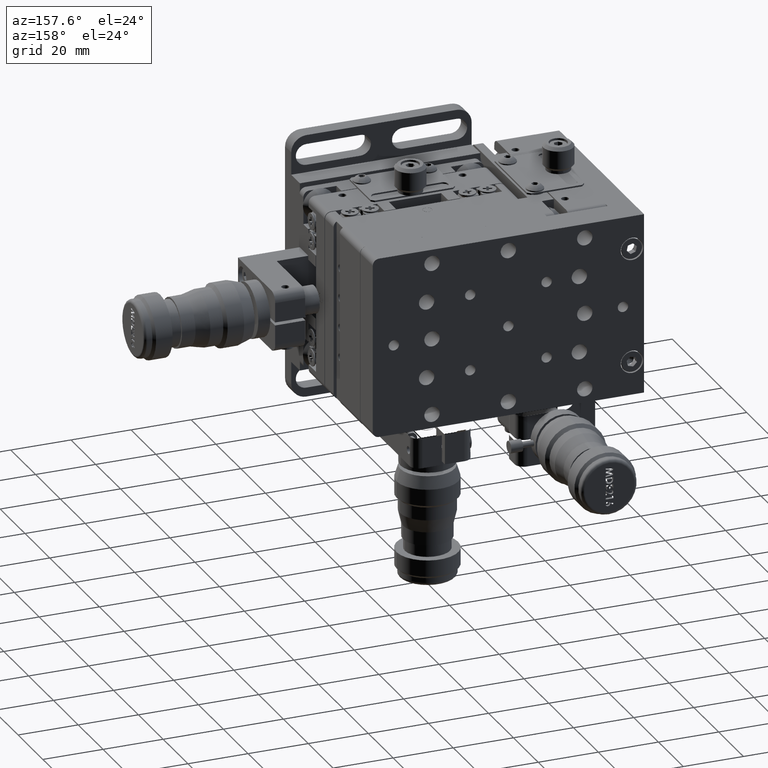
[diagram: clean part render]
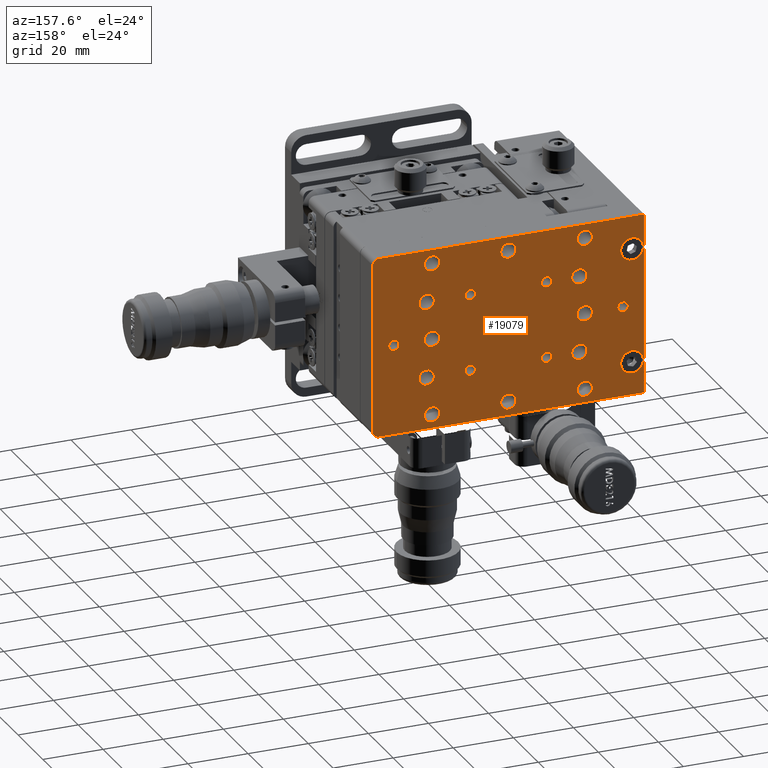
[diagram: same view with one face highlighted and labeled with its STEP entity id]
A machine part, auxiliary view. The second image highlights one B-rep face of the part: STEP entity #19079.
In plain terms, the highlighted planar face has unit normal (0, -1, -0).
Its self-contained STEP definition (entity closure, byte-faithful):
#28 = DIRECTION ( 'NONE',  ( 2.008711760047266500E-015, 0.0000000000000000000, -1.000000000000000000 ) ) ;
#84 = EDGE_CURVE ( 'NONE', #39944, #10578, #27774, .T. ) ;
#103 = ORIENTED_EDGE ( 'NONE', *, *, #25924, .F. ) ;
#221 = CARTESIAN_POINT ( 'NONE',  ( 22.99999999999957700, 70.80000000000019600, -1.158310725574249000E-013 ) ) ;
#270 = CIRCLE ( 'NONE', #38279, 2.000000000000001800 ) ;
#282 = DIRECTION ( 'NONE',  ( 1.000000000000000000, -8.326672684688671600E-017, 1.210459347431933000E-015 ) ) ;
#344 = AXIS2_PLACEMENT_3D ( 'NONE', #10219, #41829, #14713 ) ;
#414 = CARTESIAN_POINT ( 'NONE',  ( 12.09999999999956600, 70.80000000000019600, 10.14729999999986300 ) ) ;
#647 = CARTESIAN_POINT ( 'NONE',  ( -40.50000000000046900, 70.80000000000019600, 27.95269999999979800 ) ) ;
#737 = DIRECTION ( 'NONE',  ( -6.938893903907228400E-017, 1.000000000000000000, 5.551115123125772800E-017 ) ) ;
#757 = VERTEX_POINT ( 'NONE', #49933 ) ;
#768 = EDGE_LOOP ( 'NONE', ( #32524, #12530 ) ) ;
#771 = EDGE_CURVE ( 'NONE', #13234, #52982, #40700, .T. ) ;
#868 = CARTESIAN_POINT ( 'NONE',  ( -53.20000000000043600, 70.80000000000019600, 1.727199999999779100 ) ) ;
#995 = CARTESIAN_POINT ( 'NONE',  ( -2.400000000000410700, 70.80000000000019600, -12.70000000000014900 ) ) ;
#1309 = CARTESIAN_POINT ( 'NONE',  ( -15.10000000000046300, 70.80000000000019600, 25.39999999999983900 ) ) ;
#1495 = CARTESIAN_POINT ( 'NONE',  ( -15.10000000000039900, 70.80000000000019600, -27.95270000000014600 ) ) ;
#1787 = VERTEX_POINT ( 'NONE', #4220 ) ;
#2034 = CIRCLE ( 'NONE', #56628, 3.749999999999996400 ) ;
#2106 = ORIENTED_EDGE ( 'NONE', *, *, #3373, .F. ) ;
#2328 = DIRECTION ( 'NONE',  ( 0.0000000000000000000, 0.0000000000000000000, -1.000000000000000000 ) ) ;
#2527 = DIRECTION ( 'NONE',  ( -6.938893903907228400E-017, 1.000000000000000000, 5.551115123125772800E-017 ) ) ;
#2592 = CARTESIAN_POINT ( 'NONE',  ( -38.70000000000045000, 70.80000000000019600, 12.69999999999981500 ) ) ;
#2660 = DIRECTION ( 'NONE',  ( 1.359128355056853800E-015, 0.0000000000000000000, -1.000000000000000000 ) ) ;
#2683 = EDGE_CURVE ( 'NONE', #43671, #43637, #270, .T. ) ;
#2795 = ORIENTED_EDGE ( 'NONE', *, *, #7845, .F. ) ;
#2808 = AXIS2_PLACEMENT_3D ( 'NONE', #1309, #28881, #15257 ) ;
#2866 = CARTESIAN_POINT ( 'NONE',  ( -2.400000000000410700, 70.80000000000019600, -12.70000000000014900 ) ) ;
#3373 = EDGE_CURVE ( 'NONE', #15757, #36627, #58152, .T. ) ;
#3518 = DIRECTION ( 'NONE',  ( 6.938893903907224700E-017, -1.000000000000000000, -2.607917842555218700E-017 ) ) ;
#3521 = DIRECTION ( 'NONE',  ( -6.938893903907228400E-017, 1.000000000000000000, 5.551115123125772800E-017 ) ) ;
#3696 = AXIS2_PLACEMENT_3D ( 'NONE', #221, #17742, #40293 ) ;
#3713 = DIRECTION ( 'NONE',  ( -6.938893903907228400E-017, 1.000000000000000000, 5.551115123125772800E-017 ) ) ;
#3746 = VERTEX_POINT ( 'NONE', #49418 ) ;
#3870 = ORIENTED_EDGE ( 'NONE', *, *, #5349, .T. ) ;
#3896 = FACE_BOUND ( 'NONE', #30650, .T. ) ;
#3983 = EDGE_CURVE ( 'NONE', #52440, #36212, #18477, .T. ) ;
#4090 = DIRECTION ( 'NONE',  ( 1.359128355056846500E-015, 0.0000000000000000000, -1.000000000000000000 ) ) ;
#4201 = DIRECTION ( 'NONE',  ( 1.359128355056853800E-015, 0.0000000000000000000, -1.000000000000000000 ) ) ;
#4220 = CARTESIAN_POINT ( 'NONE',  ( 10.29999999999960100, 70.80000000000019600, -22.84730000000014600 ) ) ;
#4313 = AXIS2_PLACEMENT_3D ( 'NONE', #58092, #17380, #4201 ) ;
#4403 = EDGE_CURVE ( 'NONE', #32905, #53966, #16306, .T. ) ;
#4506 = DIRECTION ( 'NONE',  ( 0.0000000000000000000, 0.0000000000000000000, -1.000000000000000000 ) ) ;
#4809 = EDGE_LOOP ( 'NONE', ( #42147, #16664 ) ) ;
#4962 = CARTESIAN_POINT ( 'NONE',  ( -27.80000000000043400, 70.80000000000019600, 12.69999999999983600 ) ) ;
#4986 = DIRECTION ( 'NONE',  ( -6.938893903907228400E-017, 1.000000000000000000, 5.551115123125772800E-017 ) ) ;
#4990 = AXIS2_PLACEMENT_3D ( 'NONE', #54901, #32389, #5155 ) ;
#5155 = DIRECTION ( 'NONE',  ( 0.0000000000000000000, 0.0000000000000000000, -1.000000000000000000 ) ) ;
#5270 = AXIS2_PLACEMENT_3D ( 'NONE', #43047, #30595, #35158 ) ;
#5284 = CARTESIAN_POINT ( 'NONE',  ( -38.70000000000042900, 70.80000000000019600, -12.70000000000018600 ) ) ;
#5349 = EDGE_CURVE ( 'NONE', #10057, #43671, #35337, .T. ) ;
#5649 = CARTESIAN_POINT ( 'NONE',  ( 12.09999999999958800, 70.80000000000019600, -12.70000000000012400 ) ) ;
#5667 = DIRECTION ( 'NONE',  ( 0.0000000000000000000, 0.0000000000000000000, -1.000000000000000000 ) ) ;
#5795 = EDGE_CURVE ( 'NONE', #23425, #1787, #44509, .T. ) ;
#5798 = AXIS2_PLACEMENT_3D ( 'NONE', #14900, #55050, #50675 ) ;
#5903 = CARTESIAN_POINT ( 'NONE',  ( -60.20000000000040800, 70.80000000000019600, -30.00000000000020600 ) ) ;
#5949 = VERTEX_POINT ( 'NONE', #46596 ) ;
#6110 = EDGE_CURVE ( 'NONE', #53966, #32905, #23232, .T. ) ;
#6399 = EDGE_CURVE ( 'NONE', #24708, #10281, #2034, .T. ) ;
#6434 = CARTESIAN_POINT ( 'NONE',  ( -2.400000000000426200, 70.80000000000019600, 14.42719999999983700 ) ) ;
#6463 = ORIENTED_EDGE ( 'NONE', *, *, #41583, .F. ) ;
#6466 = AXIS2_PLACEMENT_3D ( 'NONE', #27033, #26836, #58454 ) ;
#6648 = EDGE_CURVE ( 'NONE', #3746, #35125, #23863, .T. ) ;
#6731 = FACE_BOUND ( 'NONE', #9211, .T. ) ;
#6765 = EDGE_CURVE ( 'NONE', #757, #50024, #8283, .T. ) ;
#6879 = DIRECTION ( 'NONE',  ( 1.734723475976805500E-015, 0.0000000000000000000, -1.000000000000000000 ) ) ;
#7343 = CARTESIAN_POINT ( 'NONE',  ( -56.20000000000047200, 70.80000000000019600, 18.99999999999979000 ) ) ;
#7377 = DIRECTION ( 'NONE',  ( -6.938893903907228400E-017, 1.000000000000000000, 5.551115123125772800E-017 ) ) ;
#7401 = FACE_BOUND ( 'NONE', #28190, .T. ) ;
#7483 = VERTEX_POINT ( 'NONE', #32266 ) ;
#7845 = EDGE_CURVE ( 'NONE', #58043, #47435, #54587, .T. ) ;
#7865 = CIRCLE ( 'NONE', #36309, 2.552699999999987800 ) ;
#7954 = DIRECTION ( 'NONE',  ( -6.938893903907228400E-017, 1.000000000000000000, 5.551115123125772800E-017 ) ) ;
#8257 = EDGE_CURVE ( 'NONE', #32779, #20488, #53117, .T. ) ;
#8283 = CIRCLE ( 'NONE', #39592, 2.552699999999987800 ) ;
#8361 = EDGE_CURVE ( 'NONE', #36212, #18884, #28328, .T. ) ;
#8700 = CARTESIAN_POINT ( 'NONE',  ( 12.09999999999955900, 70.80000000000019600, 15.25269999999985900 ) ) ;
#8761 = CIRCLE ( 'NONE', #57642, 2.552700000000001500 ) ;
#8802 = FACE_BOUND ( 'NONE', #44762, .T. ) ;
#8900 = VERTEX_POINT ( 'NONE', #868 ) ;
#8915 = VECTOR ( 'NONE', #48829, 1000.000000000000000 ) ;
#8971 = VERTEX_POINT ( 'NONE', #15392 ) ;
#8981 = CIRCLE ( 'NONE', #36376, 2.552700000000001500 ) ;
#9173 = CARTESIAN_POINT ( 'NONE',  ( -40.50000000000046900, 70.80000000000019600, 22.84729999999982300 ) ) ;
#9211 = EDGE_LOOP ( 'NONE', ( #54043, #20937 ) ) ;
#9212 = CIRCLE ( 'NONE', #42020, 1.727199999999984300 ) ;
#9606 = DIRECTION ( 'NONE',  ( 0.0000000000000000000, 0.0000000000000000000, -1.000000000000000000 ) ) ;
#9804 = EDGE_CURVE ( 'NONE', #35125, #3746, #39538, .T. ) ;
#9993 = CARTESIAN_POINT ( 'NONE',  ( 12.09999999999956300, 70.80000000000019600, 12.69999999999986100 ) ) ;
#10004 = EDGE_CURVE ( 'NONE', #50395, #47219, #47996, .T. ) ;
#10011 = AXIS2_PLACEMENT_3D ( 'NONE', #4962, #27023, #28 ) ;
#10057 = VERTEX_POINT ( 'NONE', #56586 ) ;
#10132 = CARTESIAN_POINT ( 'NONE',  ( 27.99999999999960200, 70.80000000000019600, -30.00000000000010300 ) ) ;
#10219 = CARTESIAN_POINT ( 'NONE',  ( -15.10000000000040300, 70.80000000000019600, -25.40000000000015800 ) ) ;
#10261 = DIRECTION ( 'NONE',  ( -6.938893903907228400E-017, 1.000000000000000000, 5.551115123125772800E-017 ) ) ;
#10281 = VERTEX_POINT ( 'NONE', #42629 ) ;
#10282 = DIRECTION ( 'NONE',  ( 2.008711760047266500E-015, 0.0000000000000000000, -1.000000000000000000 ) ) ;
#10375 = EDGE_LOOP ( 'NONE', ( #103, #23224 ) ) ;
#10510 = CARTESIAN_POINT ( 'NONE',  ( -38.70000000000045000, 70.80000000000019600, 12.69999999999981500 ) ) ;
#10578 = VERTEX_POINT ( 'NONE', #17451 ) ;
#10704 = CIRCLE ( 'NONE', #40497, 2.552699999999987800 ) ;
#10869 = AXIS2_PLACEMENT_3D ( 'NONE', #5649, #18452, #45753 ) ;
#11127 = CARTESIAN_POINT ( 'NONE',  ( -40.50000000000041200, 70.80000000000019600, -27.95270000000017400 ) ) ;
#11395 = DIRECTION ( 'NONE',  ( -6.938893903907228400E-017, 1.000000000000000000, 5.551115123125772800E-017 ) ) ;
#11724 = EDGE_CURVE ( 'NONE', #42315, #58046, #13123, .T. ) ;
#11734 = DIRECTION ( 'NONE',  ( 1.359128355056848400E-015, 0.0000000000000000000, -1.000000000000000000 ) ) ;
#11996 = EDGE_CURVE ( 'NONE', #36627, #15757, #8981, .T. ) ;
#12018 = ORIENTED_EDGE ( 'NONE', *, *, #12629, .F. ) ;
#12219 = EDGE_CURVE ( 'NONE', #25860, #41143, #58382, .T. ) ;
#12330 = EDGE_CURVE ( 'NONE', #52604, #40164, #52736, .T. ) ;
#12406 = ORIENTED_EDGE ( 'NONE', *, *, #8257, .F. ) ;
#12530 = ORIENTED_EDGE ( 'NONE', *, *, #33742, .F. ) ;
#12629 = EDGE_CURVE ( 'NONE', #7483, #8900, #23005, .T. ) ;
#13019 = FACE_BOUND ( 'NONE', #20697, .T. ) ;
#13123 = CIRCLE ( 'NONE', #15481, 2.552699999999998000 ) ;
#13225 = DIRECTION ( 'NONE',  ( -6.938893903907228400E-017, 1.000000000000000000, 5.551115123125772800E-017 ) ) ;
#13234 = VERTEX_POINT ( 'NONE', #51046 ) ;
#13289 = AXIS2_PLACEMENT_3D ( 'NONE', #33113, #51227, #51413 ) ;
#13347 = CIRCLE ( 'NONE', #19594, 1.727199999999987900 ) ;
#13426 = DIRECTION ( 'NONE',  ( 1.850371707708595900E-015, 0.0000000000000000000, -1.000000000000000000 ) ) ;
#13579 = EDGE_CURVE ( 'NONE', #32892, #5949, #46245, .T. ) ;
#13789 = EDGE_CURVE ( 'NONE', #48854, #50743, #8761, .T. ) ;
#13819 = CIRCLE ( 'NONE', #19794, 1.727199999999991200 ) ;
#13852 = ORIENTED_EDGE ( 'NONE', *, *, #10004, .F. ) ;
#13906 = CARTESIAN_POINT ( 'NONE',  ( 27.99999999999960200, 70.80000000000019600, -30.00000000000010300 ) ) ;
#14040 = AXIS2_PLACEMENT_3D ( 'NONE', #22902, #4986, #10282 ) ;
#14049 = DIRECTION ( 'NONE',  ( 1.004355880023633300E-015, 0.0000000000000000000, -1.000000000000000000 ) ) ;
#14213 = CARTESIAN_POINT ( 'NONE',  ( -40.50000000000044100, 70.80000000000019600, -1.901973966584790100E-013 ) ) ;
#14350 = DIRECTION ( 'NONE',  ( -6.938893903907228400E-017, 1.000000000000000000, 5.551115123125772800E-017 ) ) ;
#14479 = DIRECTION ( 'NONE',  ( -6.938893903907228400E-017, 1.000000000000000000, 5.551115123125772800E-017 ) ) ;
#14710 = ORIENTED_EDGE ( 'NONE', *, *, #16564, .F. ) ;
#14713 = DIRECTION ( 'NONE',  ( 1.359128355056853800E-015, 0.0000000000000000000, -1.000000000000000000 ) ) ;
#14900 = CARTESIAN_POINT ( 'NONE',  ( -40.50000000000041200, 70.80000000000019600, -25.40000000000018700 ) ) ;
#15108 = FACE_BOUND ( 'NONE', #42209, .T. ) ;
#15257 = DIRECTION ( 'NONE',  ( 1.359128355056853800E-015, 0.0000000000000000000, -1.000000000000000000 ) ) ;
#15349 = CARTESIAN_POINT ( 'NONE',  ( 22.99999999999957400, 70.80000000000019600, 1.727199999999875500 ) ) ;
#15392 = CARTESIAN_POINT ( 'NONE',  ( 10.29999999999956900, 70.80000000000019600, 2.552699999999857200 ) ) ;
#15481 = AXIS2_PLACEMENT_3D ( 'NONE', #10510, #55372, #45901 ) ;
#15529 = DIRECTION ( 'NONE',  ( -6.938893903907228400E-017, 1.000000000000000000, 5.551115123125772800E-017 ) ) ;
#15757 = VERTEX_POINT ( 'NONE', #47573 ) ;
#15849 = ORIENTED_EDGE ( 'NONE', *, *, #39177, .T. ) ;
#16306 = CIRCLE ( 'NONE', #13289, 1.727199999999987900 ) ;
#16449 = EDGE_CURVE ( 'NONE', #8971, #34310, #48700, .T. ) ;
#16527 = FACE_BOUND ( 'NONE', #10375, .T. ) ;
#16564 = EDGE_CURVE ( 'NONE', #58046, #42315, #50778, .T. ) ;
#16582 = CARTESIAN_POINT ( 'NONE',  ( -27.80000000000043100, 70.80000000000019600, 10.97279999999984800 ) ) ;
#16616 = CARTESIAN_POINT ( 'NONE',  ( -15.10000000000046000, 70.80000000000019600, 22.84729999999985100 ) ) ;
#16664 = ORIENTED_EDGE ( 'NONE', *, *, #16449, .F. ) ;
#17380 = DIRECTION ( 'NONE',  ( -6.938893903907228400E-017, 1.000000000000000000, 5.551115123125772800E-017 ) ) ;
#17451 = CARTESIAN_POINT ( 'NONE',  ( 10.29999999999953900, 70.80000000000019600, 27.95269999999985800 ) ) ;
#17549 = CARTESIAN_POINT ( 'NONE',  ( 10.29999999999954200, 70.80000000000019600, 25.39999999999987100 ) ) ;
#17634 = AXIS2_PLACEMENT_3D ( 'NONE', #54226, #737, #9606 ) ;
#17740 = DIRECTION ( 'NONE',  ( 2.008711760047266500E-015, 0.0000000000000000000, -1.000000000000000000 ) ) ;
#17742 = DIRECTION ( 'NONE',  ( -6.938893903907228400E-017, 1.000000000000000000, 5.551115123125772800E-017 ) ) ;
#17764 = CARTESIAN_POINT ( 'NONE',  ( 10.29999999999957300, 70.80000000000019600, -1.307043373776357000E-013 ) ) ;
#17853 = AXIS2_PLACEMENT_3D ( 'NONE', #41347, #57495, #49741 ) ;
#17940 = CARTESIAN_POINT ( 'NONE',  ( -56.20000000000043600, 70.80000000000019600, -15.25000000000021100 ) ) ;
#17966 = FACE_BOUND ( 'NONE', #4809, .T. ) ;
#18432 = EDGE_LOOP ( 'NONE', ( #2795, #51279 ) ) ;
#18445 = EDGE_CURVE ( 'NONE', #43637, #52440, #22997, .T. ) ;
#18452 = DIRECTION ( 'NONE',  ( -6.938893903907228400E-017, 1.000000000000000000, 5.551115123125772800E-017 ) ) ;
#18477 = CIRCLE ( 'NONE', #31846, 2.000000000000005300 ) ;
#18646 = ORIENTED_EDGE ( 'NONE', *, *, #13789, .F. ) ;
#18884 = VERTEX_POINT ( 'NONE', #5903 ) ;
#19015 = ORIENTED_EDGE ( 'NONE', *, *, #31879, .F. ) ;
#19079 = ADVANCED_FACE ( 'NONE', ( #25057, #50497, #58258, #13019, #38520, #23615, #15108, #17966, #19391, #44837, #50568, #51177, #47724, #16527, #6731, #3896, #7401, #8802, #26446, #53341, #20810, #37120 ), #30342, .F. ) ;
#19234 = DIRECTION ( 'NONE',  ( 1.850371707708595900E-015, 0.0000000000000000000, -1.000000000000000000 ) ) ;
#19391 = FACE_BOUND ( 'NONE', #53357, .T. ) ;
#19594 = AXIS2_PLACEMENT_3D ( 'NONE', #49131, #53548, #44860 ) ;
#19794 = AXIS2_PLACEMENT_3D ( 'NONE', #24353, #14479, #51407 ) ;
#20172 = ORIENTED_EDGE ( 'NONE', *, *, #12219, .F. ) ;
#20488 = VERTEX_POINT ( 'NONE', #21888 ) ;
#20615 = DIRECTION ( 'NONE',  ( -6.938893903907228400E-017, 1.000000000000000000, 5.551115123125772800E-017 ) ) ;
#20697 = EDGE_LOOP ( 'NONE', ( #13852, #19015 ) ) ;
#20810 = FACE_BOUND ( 'NONE', #32888, .T. ) ;
#20860 = AXIS2_PLACEMENT_3D ( 'NONE', #5284, #32733, #5667 ) ;
#20937 = ORIENTED_EDGE ( 'NONE', *, *, #6110, .F. ) ;
#21064 = CIRCLE ( 'NONE', #14040, 1.727199999999987900 ) ;
#21132 = AXIS2_PLACEMENT_3D ( 'NONE', #53830, #35889, #22017 ) ;
#21286 = CARTESIAN_POINT ( 'NONE',  ( -53.20000000000043600, 70.80000000000019600, -2.050706614786898400E-013 ) ) ;
#21626 = CARTESIAN_POINT ( 'NONE',  ( -2.400000000000424500, 70.80000000000019600, 12.69999999999985000 ) ) ;
#21670 = EDGE_CURVE ( 'NONE', #50743, #48854, #48303, .T. ) ;
#21826 = VERTEX_POINT ( 'NONE', #1495 ) ;
#21888 = CARTESIAN_POINT ( 'NONE',  ( -40.50000000000041200, 70.80000000000019600, -22.84730000000020000 ) ) ;
#22017 = DIRECTION ( 'NONE',  ( 1.850371707708595900E-015, 0.0000000000000000000, -1.000000000000000000 ) ) ;
#22521 = ORIENTED_EDGE ( 'NONE', *, *, #21670, .F. ) ;
#22724 = CARTESIAN_POINT ( 'NONE',  ( 27.99999999999953800, 70.80000000000019600, 29.99999999999989700 ) ) ;
#22902 = CARTESIAN_POINT ( 'NONE',  ( -27.80000000000041600, 70.80000000000019600, -12.70000000000016300 ) ) ;
#22997 = LINE ( 'NONE', #31229, #8915 ) ;
#23005 = CIRCLE ( 'NONE', #4990, 1.727199999999984300 ) ;
#23224 = ORIENTED_EDGE ( 'NONE', *, *, #13579, .F. ) ;
#23232 = CIRCLE ( 'NONE', #33552, 1.727199999999987900 ) ;
#23425 = VERTEX_POINT ( 'NONE', #44908 ) ;
#23601 = AXIS2_PLACEMENT_3D ( 'NONE', #53170, #29658, #2660 ) ;
#23615 = FACE_BOUND ( 'NONE', #768, .T. ) ;
#23814 = ORIENTED_EDGE ( 'NONE', *, *, #18445, .T. ) ;
#23863 = CIRCLE ( 'NONE', #56169, 3.749999999999996400 ) ;
#24353 = CARTESIAN_POINT ( 'NONE',  ( 22.99999999999957700, 70.80000000000019600, -1.158310725574249000E-013 ) ) ;
#24625 = EDGE_LOOP ( 'NONE', ( #25972, #53334 ) ) ;
#24693 = CARTESIAN_POINT ( 'NONE',  ( -40.50000000000044100, 70.80000000000019600, 2.552699999999797200 ) ) ;
#24708 = VERTEX_POINT ( 'NONE', #32672 ) ;
#24734 = AXIS2_PLACEMENT_3D ( 'NONE', #2592, #34198, #43250 ) ;
#24787 = CARTESIAN_POINT ( 'NONE',  ( -40.50000000000044100, 70.80000000000019600, -1.901973966584790100E-013 ) ) ;
#24966 = EDGE_CURVE ( 'NONE', #40164, #52604, #36002, .T. ) ;
#25057 = FACE_BOUND ( 'NONE', #27405, .T. ) ;
#25221 = AXIS2_PLACEMENT_3D ( 'NONE', #27088, #54773, #14049 ) ;
#25241 = EDGE_LOOP ( 'NONE', ( #43368, #56950 ) ) ;
#25309 = VERTEX_POINT ( 'NONE', #38282 ) ;
#25817 = DIRECTION ( 'NONE',  ( -6.938893903907228400E-017, 1.000000000000000000, 5.551115123125772800E-017 ) ) ;
#25860 = VERTEX_POINT ( 'NONE', #38214 ) ;
#25924 = EDGE_CURVE ( 'NONE', #5949, #32892, #43661, .T. ) ;
#25972 = ORIENTED_EDGE ( 'NONE', *, *, #84, .F. ) ;
#25974 = DIRECTION ( 'NONE',  ( -1.172977052714774000E-015, -2.607917842555226700E-017, 1.000000000000000000 ) ) ;
#26095 = CARTESIAN_POINT ( 'NONE',  ( 10.29999999999954600, 70.80000000000019600, 22.84729999999988300 ) ) ;
#26181 = CARTESIAN_POINT ( 'NONE',  ( 12.09999999999958400, 70.80000000000019600, -10.14730000000012200 ) ) ;
#26195 = CARTESIAN_POINT ( 'NONE',  ( -40.50000000000046900, 70.80000000000019600, 25.39999999999981000 ) ) ;
#26408 = VERTEX_POINT ( 'NONE', #48199 ) ;
#26446 = FACE_BOUND ( 'NONE', #18432, .T. ) ;
#26836 = DIRECTION ( 'NONE',  ( -6.938893903907228400E-017, 1.000000000000000000, 5.551115123125772800E-017 ) ) ;
#27023 = DIRECTION ( 'NONE',  ( -6.938893903907228400E-017, 1.000000000000000000, 5.551115123125772800E-017 ) ) ;
#27033 = CARTESIAN_POINT ( 'NONE',  ( -15.10000000000040300, 70.80000000000019600, -25.40000000000015800 ) ) ;
#27088 = CARTESIAN_POINT ( 'NONE',  ( -15.10000000000043300, 70.80000000000019600, -1.604508670180573800E-013 ) ) ;
#27195 = DIRECTION ( 'NONE',  ( 1.359128355056853800E-015, 0.0000000000000000000, -1.000000000000000000 ) ) ;
#27396 = DIRECTION ( 'NONE',  ( 0.0000000000000000000, 0.0000000000000000000, -1.000000000000000000 ) ) ;
#27405 = EDGE_LOOP ( 'NONE', ( #14710, #47233 ) ) ;
#27774 = CIRCLE ( 'NONE', #53637, 2.552699999999987800 ) ;
#27817 = CARTESIAN_POINT ( 'NONE',  ( 27.99999999999953800, 70.80000000000019600, 29.99999999999989700 ) ) ;
#27834 = ORIENTED_EDGE ( 'NONE', *, *, #47138, .F. ) ;
#27987 = DIRECTION ( 'NONE',  ( 1.255444850029541500E-015, 0.0000000000000000000, -1.000000000000000000 ) ) ;
#28190 = EDGE_LOOP ( 'NONE', ( #12018, #52666 ) ) ;
#28328 = LINE ( 'NONE', #13906, #48152 ) ;
#28548 = EDGE_LOOP ( 'NONE', ( #54100, #50838 ) ) ;
#28776 = CARTESIAN_POINT ( 'NONE',  ( 12.09999999999959100, 70.80000000000019600, -15.25270000000012500 ) ) ;
#28881 = DIRECTION ( 'NONE',  ( -6.938893903907228400E-017, 1.000000000000000000, 5.551115123125772800E-017 ) ) ;
#29121 = EDGE_LOOP ( 'NONE', ( #55567, #47630 ) ) ;
#29336 = AXIS2_PLACEMENT_3D ( 'NONE', #46427, #10261, #46628 ) ;
#29438 = AXIS2_PLACEMENT_3D ( 'NONE', #17549, #58455, #54115 ) ;
#29658 = DIRECTION ( 'NONE',  ( -6.938893903907228400E-017, 1.000000000000000000, 5.551115123125772800E-017 ) ) ;
#30126 = CARTESIAN_POINT ( 'NONE',  ( 29.99999999999960200, 70.80000000000019600, -28.00000000000010300 ) ) ;
#30342 = PLANE ( 'NONE',  #55928 ) ;
#30595 = DIRECTION ( 'NONE',  ( -6.938893903907228400E-017, 1.000000000000000000, 5.551115123125772800E-017 ) ) ;
#30650 = EDGE_LOOP ( 'NONE', ( #27834, #6463 ) ) ;
#31129 = CARTESIAN_POINT ( 'NONE',  ( 12.09999999999958800, 70.80000000000019600, -12.70000000000012400 ) ) ;
#31187 = ORIENTED_EDGE ( 'NONE', *, *, #6648, .F. ) ;
#31229 = CARTESIAN_POINT ( 'NONE',  ( 29.99999999999954200, 70.80000000000019600, 27.99999999999989700 ) ) ;
#31619 = AXIS2_PLACEMENT_3D ( 'NONE', #7343, #34422, #38963 ) ;
#31846 = AXIS2_PLACEMENT_3D ( 'NONE', #46873, #42705, #56326 ) ;
#31879 = EDGE_CURVE ( 'NONE', #47219, #50395, #36295, .T. ) ;
#32160 = EDGE_CURVE ( 'NONE', #21826, #54671, #36249, .T. ) ;
#32266 = CARTESIAN_POINT ( 'NONE',  ( -53.20000000000043600, 70.80000000000019600, -1.727200000000189500 ) ) ;
#32389 = DIRECTION ( 'NONE',  ( -6.938893903907228400E-017, 1.000000000000000000, 5.551115123125772800E-017 ) ) ;
#32524 = ORIENTED_EDGE ( 'NONE', *, *, #32160, .F. ) ;
#32672 = CARTESIAN_POINT ( 'NONE',  ( -56.20000000000046500, 70.80000000000019600, 15.24999999999979600 ) ) ;
#32733 = DIRECTION ( 'NONE',  ( -6.938893903907228400E-017, 1.000000000000000000, 5.551115123125772800E-017 ) ) ;
#32779 = VERTEX_POINT ( 'NONE', #11127 ) ;
#32888 = EDGE_LOOP ( 'NONE', ( #48226, #50812 ) ) ;
#32892 = VERTEX_POINT ( 'NONE', #43700 ) ;
#32905 = VERTEX_POINT ( 'NONE', #38990 ) ;
#33067 = EDGE_CURVE ( 'NONE', #34310, #8971, #7865, .T. ) ;
#33113 = CARTESIAN_POINT ( 'NONE',  ( -2.400000000000424500, 70.80000000000019600, 12.69999999999985000 ) ) ;
#33552 = AXIS2_PLACEMENT_3D ( 'NONE', #21626, #3521, #57599 ) ;
#33742 = EDGE_CURVE ( 'NONE', #54671, #21826, #49475, .T. ) ;
#34113 = EDGE_CURVE ( 'NONE', #8900, #7483, #9212, .T. ) ;
#34198 = DIRECTION ( 'NONE',  ( -6.938893903907228400E-017, 1.000000000000000000, 5.551115123125772800E-017 ) ) ;
#34310 = VERTEX_POINT ( 'NONE', #45573 ) ;
#34422 = DIRECTION ( 'NONE',  ( -6.938893903907228400E-017, 1.000000000000000000, 5.551115123125772800E-017 ) ) ;
#34568 = EDGE_LOOP ( 'NONE', ( #31187, #39444 ) ) ;
#34926 = ORIENTED_EDGE ( 'NONE', *, *, #8361, .T. ) ;
#34992 = CARTESIAN_POINT ( 'NONE',  ( -38.70000000000042900, 70.80000000000019600, -15.25270000000018700 ) ) ;
#35026 = ORIENTED_EDGE ( 'NONE', *, *, #49699, .F. ) ;
#35125 = VERTEX_POINT ( 'NONE', #17940 ) ;
#35158 = DIRECTION ( 'NONE',  ( 1.359128355056848400E-015, 0.0000000000000000000, -1.000000000000000000 ) ) ;
#35337 = LINE ( 'NONE', #22724, #50897 ) ;
#35869 = CARTESIAN_POINT ( 'NONE',  ( 22.99999999999958100, 70.80000000000019600, -1.727200000000107100 ) ) ;
#35889 = DIRECTION ( 'NONE',  ( -6.938893903907228400E-017, 1.000000000000000000, 5.551115123125772800E-017 ) ) ;
#35931 = AXIS2_PLACEMENT_3D ( 'NONE', #45431, #44824, #17740 ) ;
#36002 = CIRCLE ( 'NONE', #17853, 2.552699999999987800 ) ;
#36212 = VERTEX_POINT ( 'NONE', #10132 ) ;
#36249 = CIRCLE ( 'NONE', #344, 2.552699999999987800 ) ;
#36295 = CIRCLE ( 'NONE', #5270, 2.552699999999998000 ) ;
#36309 = AXIS2_PLACEMENT_3D ( 'NONE', #17764, #7954, #49375 ) ;
#36376 = AXIS2_PLACEMENT_3D ( 'NONE', #54892, #49922, #27396 ) ;
#36391 = CARTESIAN_POINT ( 'NONE',  ( -60.20000000000047200, 70.80000000000019600, 29.99999999999979000 ) ) ;
#36563 = CARTESIAN_POINT ( 'NONE',  ( -38.70000000000045000, 70.80000000000019600, 15.25269999999981300 ) ) ;
#36627 = VERTEX_POINT ( 'NONE', #34992 ) ;
#36770 = ORIENTED_EDGE ( 'NONE', *, *, #45309, .F. ) ;
#36976 = CARTESIAN_POINT ( 'NONE',  ( 29.99999999999954200, 70.80000000000019600, 27.99999999999989700 ) ) ;
#37120 = FACE_OUTER_BOUND ( 'NONE', #55992, .T. ) ;
#38205 = CARTESIAN_POINT ( 'NONE',  ( 10.29999999999954200, 70.80000000000019600, 25.39999999999987100 ) ) ;
#38214 = CARTESIAN_POINT ( 'NONE',  ( -15.10000000000043500, 70.80000000000019600, 1.727199999999827300 ) ) ;
#38279 = AXIS2_PLACEMENT_3D ( 'NONE', #39080, #11395, #6879 ) ;
#38282 = CARTESIAN_POINT ( 'NONE',  ( -27.80000000000043800, 70.80000000000019600, 14.42719999999982500 ) ) ;
#38520 = FACE_BOUND ( 'NONE', #56203, .T. ) ;
#38547 = ORIENTED_EDGE ( 'NONE', *, *, #2683, .T. ) ;
#38585 = CIRCLE ( 'NONE', #29336, 2.552699999999987800 ) ;
#38600 = DIRECTION ( 'NONE',  ( -6.938893903907228400E-017, 1.000000000000000000, 5.551115123125772800E-017 ) ) ;
#38710 = DIRECTION ( 'NONE',  ( 0.0000000000000000000, 0.0000000000000000000, -1.000000000000000000 ) ) ;
#38963 = DIRECTION ( 'NONE',  ( 1.850371707708595900E-015, 0.0000000000000000000, -1.000000000000000000 ) ) ;
#38990 = CARTESIAN_POINT ( 'NONE',  ( -2.400000000000422200, 70.80000000000019600, 10.97279999999986300 ) ) ;
#39080 = CARTESIAN_POINT ( 'NONE',  ( 27.99999999999953800, 70.80000000000019600, 27.99999999999989700 ) ) ;
#39177 = EDGE_CURVE ( 'NONE', #18884, #10057, #51733, .T. ) ;
#39444 = ORIENTED_EDGE ( 'NONE', *, *, #9804, .F. ) ;
#39538 = CIRCLE ( 'NONE', #21132, 3.749999999999996400 ) ;
#39592 = AXIS2_PLACEMENT_3D ( 'NONE', #14213, #45879, #42511 ) ;
#39944 = VERTEX_POINT ( 'NONE', #26095 ) ;
#40164 = VERTEX_POINT ( 'NONE', #647 ) ;
#40293 = DIRECTION ( 'NONE',  ( 2.008711760047262600E-015, 0.0000000000000000000, -1.000000000000000000 ) ) ;
#40401 = CARTESIAN_POINT ( 'NONE',  ( -38.70000000000045000, 70.80000000000019600, 10.14729999999981700 ) ) ;
#40497 = AXIS2_PLACEMENT_3D ( 'NONE', #24787, #2527, #2328 ) ;
#40514 = AXIS2_PLACEMENT_3D ( 'NONE', #26195, #57997, #4506 ) ;
#40526 = CARTESIAN_POINT ( 'NONE',  ( -56.20000000000042900, 70.80000000000019600, -19.00000000000020600 ) ) ;
#40700 = CIRCLE ( 'NONE', #35931, 1.727199999999987900 ) ;
#41141 = ORIENTED_EDGE ( 'NONE', *, *, #6765, .F. ) ;
#41143 = VERTEX_POINT ( 'NONE', #45328 ) ;
#41267 = ORIENTED_EDGE ( 'NONE', *, *, #3983, .T. ) ;
#41347 = CARTESIAN_POINT ( 'NONE',  ( -40.50000000000046900, 70.80000000000019600, 25.39999999999981000 ) ) ;
#41378 = AXIS2_PLACEMENT_3D ( 'NONE', #50503, #14350, #27195 ) ;
#41583 = EDGE_CURVE ( 'NONE', #25309, #46907, #13347, .T. ) ;
#41829 = DIRECTION ( 'NONE',  ( -6.938893903907228400E-017, 1.000000000000000000, 5.551115123125772800E-017 ) ) ;
#42020 = AXIS2_PLACEMENT_3D ( 'NONE', #21286, #25817, #38710 ) ;
#42129 = EDGE_CURVE ( 'NONE', #10578, #39944, #42550, .T. ) ;
#42147 = ORIENTED_EDGE ( 'NONE', *, *, #33067, .F. ) ;
#42209 = EDGE_LOOP ( 'NONE', ( #49176, #54243 ) ) ;
#42232 = CIRCLE ( 'NONE', #5798, 2.552699999999987800 ) ;
#42315 = VERTEX_POINT ( 'NONE', #36563 ) ;
#42511 = DIRECTION ( 'NONE',  ( 0.0000000000000000000, 0.0000000000000000000, -1.000000000000000000 ) ) ;
#42550 = CIRCLE ( 'NONE', #29438, 2.552699999999987800 ) ;
#42629 = CARTESIAN_POINT ( 'NONE',  ( -56.20000000000047900, 70.80000000000019600, 22.74999999999978700 ) ) ;
#42705 = DIRECTION ( 'NONE',  ( -6.938893903907228400E-017, 1.000000000000000000, 5.551115123125772800E-017 ) ) ;
#43047 = CARTESIAN_POINT ( 'NONE',  ( 12.09999999999956300, 70.80000000000019600, 12.69999999999986100 ) ) ;
#43092 = CARTESIAN_POINT ( 'NONE',  ( -15.10000000000040600, 70.80000000000019600, -22.84730000000017100 ) ) ;
#43250 = DIRECTION ( 'NONE',  ( 0.0000000000000000000, 0.0000000000000000000, -1.000000000000000000 ) ) ;
#43331 = DIRECTION ( 'NONE',  ( 1.255444850029541500E-015, 0.0000000000000000000, -1.000000000000000000 ) ) ;
#43368 = ORIENTED_EDGE ( 'NONE', *, *, #48847, .F. ) ;
#43637 = VERTEX_POINT ( 'NONE', #36976 ) ;
#43661 = CIRCLE ( 'NONE', #55009, 1.727199999999987900 ) ;
#43671 = VERTEX_POINT ( 'NONE', #27817 ) ;
#43700 = CARTESIAN_POINT ( 'NONE',  ( -2.400000000000412000, 70.80000000000019600, -10.97280000000016100 ) ) ;
#44124 = ORIENTED_EDGE ( 'NONE', *, *, #11996, .F. ) ;
#44509 = CIRCLE ( 'NONE', #41378, 2.552699999999987800 ) ;
#44672 = EDGE_LOOP ( 'NONE', ( #18646, #22521 ) ) ;
#44674 = EDGE_CURVE ( 'NONE', #52982, #13234, #21064, .T. ) ;
#44684 = CIRCLE ( 'NONE', #31619, 3.749999999999996400 ) ;
#44762 = EDGE_LOOP ( 'NONE', ( #35026, #20172 ) ) ;
#44824 = DIRECTION ( 'NONE',  ( -6.938893903907228400E-017, 1.000000000000000000, 5.551115123125772800E-017 ) ) ;
#44837 = FACE_BOUND ( 'NONE', #29121, .T. ) ;
#44860 = DIRECTION ( 'NONE',  ( 2.008711760047266500E-015, 0.0000000000000000000, -1.000000000000000000 ) ) ;
#44908 = CARTESIAN_POINT ( 'NONE',  ( 10.29999999999960800, 70.80000000000019600, -27.95270000000012100 ) ) ;
#45309 = EDGE_CURVE ( 'NONE', #20488, #32779, #42232, .T. ) ;
#45328 = CARTESIAN_POINT ( 'NONE',  ( -15.10000000000043100, 70.80000000000019600, -1.727200000000148200 ) ) ;
#45358 = DIRECTION ( 'NONE',  ( -1.000000000000000000, 8.326672684688671600E-017, -1.171123214189828600E-015 ) ) ;
#45431 = CARTESIAN_POINT ( 'NONE',  ( -27.80000000000041600, 70.80000000000019600, -12.70000000000016300 ) ) ;
#45573 = CARTESIAN_POINT ( 'NONE',  ( 10.29999999999957600, 70.80000000000019600, -2.552700000000118300 ) ) ;
#45698 = CIRCLE ( 'NONE', #4313, 2.552699999999987800 ) ;
#45753 = DIRECTION ( 'NONE',  ( 1.359128355056846500E-015, 0.0000000000000000000, -1.000000000000000000 ) ) ;
#45879 = DIRECTION ( 'NONE',  ( -6.938893903907228400E-017, 1.000000000000000000, 5.551115123125772800E-017 ) ) ;
#45901 = DIRECTION ( 'NONE',  ( 0.0000000000000000000, 0.0000000000000000000, -1.000000000000000000 ) ) ;
#46025 = EDGE_CURVE ( 'NONE', #1787, #23425, #45698, .T. ) ;
#46120 = VECTOR ( 'NONE', #54747, 1000.000000000000000 ) ;
#46245 = CIRCLE ( 'NONE', #57976, 1.727199999999987900 ) ;
#46427 = CARTESIAN_POINT ( 'NONE',  ( -15.10000000000046300, 70.80000000000019600, 25.39999999999983900 ) ) ;
#46516 = AXIS2_PLACEMENT_3D ( 'NONE', #9993, #20615, #11734 ) ;
#46596 = CARTESIAN_POINT ( 'NONE',  ( -2.400000000000408500, 70.80000000000019600, -14.42720000000013600 ) ) ;
#46628 = DIRECTION ( 'NONE',  ( 1.359128355056853800E-015, 0.0000000000000000000, -1.000000000000000000 ) ) ;
#46873 = CARTESIAN_POINT ( 'NONE',  ( 27.99999999999960200, 70.80000000000019600, -28.00000000000010300 ) ) ;
#46907 = VERTEX_POINT ( 'NONE', #16582 ) ;
#46925 = EDGE_LOOP ( 'NONE', ( #44124, #2106 ) ) ;
#47138 = EDGE_CURVE ( 'NONE', #46907, #25309, #48408, .T. ) ;
#47219 = VERTEX_POINT ( 'NONE', #8700 ) ;
#47233 = ORIENTED_EDGE ( 'NONE', *, *, #11724, .F. ) ;
#47435 = VERTEX_POINT ( 'NONE', #15349 ) ;
#47573 = CARTESIAN_POINT ( 'NONE',  ( -38.70000000000042900, 70.80000000000019600, -10.14730000000018400 ) ) ;
#47630 = ORIENTED_EDGE ( 'NONE', *, *, #24966, .F. ) ;
#47701 = DIRECTION ( 'NONE',  ( 1.359128355056853800E-015, 0.0000000000000000000, -1.000000000000000000 ) ) ;
#47724 = FACE_BOUND ( 'NONE', #28548, .T. ) ;
#47996 = CIRCLE ( 'NONE', #46516, 2.552699999999998000 ) ;
#48152 = VECTOR ( 'NONE', #45358, 1000.000000000000000 ) ;
#48199 = CARTESIAN_POINT ( 'NONE',  ( -15.10000000000046700, 70.80000000000019600, 27.95269999999982600 ) ) ;
#48226 = ORIENTED_EDGE ( 'NONE', *, *, #6399, .F. ) ;
#48303 = CIRCLE ( 'NONE', #10869, 2.552700000000001500 ) ;
#48408 = CIRCLE ( 'NONE', #10011, 1.727199999999987900 ) ;
#48432 = EDGE_CURVE ( 'NONE', #10281, #24708, #44684, .T. ) ;
#48442 = CARTESIAN_POINT ( 'NONE',  ( -27.80000000000041300, 70.80000000000019600, -14.42720000000015000 ) ) ;
#48553 = CARTESIAN_POINT ( 'NONE',  ( -15.10000000000043300, 70.80000000000019600, -1.604508670180573800E-013 ) ) ;
#48700 = CIRCLE ( 'NONE', #23601, 2.552699999999987800 ) ;
#48829 = DIRECTION ( 'NONE',  ( 1.172977052714774000E-015, 2.607917842555226700E-017, -1.000000000000000000 ) ) ;
#48847 = EDGE_CURVE ( 'NONE', #55846, #26408, #38585, .T. ) ;
#48854 = VERTEX_POINT ( 'NONE', #28776 ) ;
#49131 = CARTESIAN_POINT ( 'NONE',  ( -27.80000000000043400, 70.80000000000019600, 12.69999999999983600 ) ) ;
#49176 = ORIENTED_EDGE ( 'NONE', *, *, #5795, .F. ) ;
#49375 = DIRECTION ( 'NONE',  ( 1.359128355056853800E-015, 0.0000000000000000000, -1.000000000000000000 ) ) ;
#49418 = CARTESIAN_POINT ( 'NONE',  ( -56.20000000000042200, 70.80000000000019600, -22.75000000000020300 ) ) ;
#49475 = CIRCLE ( 'NONE', #6466, 2.552699999999987800 ) ;
#49699 = EDGE_CURVE ( 'NONE', #41143, #25860, #56146, .T. ) ;
#49741 = DIRECTION ( 'NONE',  ( 0.0000000000000000000, 0.0000000000000000000, -1.000000000000000000 ) ) ;
#49922 = DIRECTION ( 'NONE',  ( -6.938893903907228400E-017, 1.000000000000000000, 5.551115123125772800E-017 ) ) ;
#49933 = CARTESIAN_POINT ( 'NONE',  ( -40.50000000000044100, 70.80000000000019600, -2.552700000000177800 ) ) ;
#50024 = VERTEX_POINT ( 'NONE', #24693 ) ;
#50395 = VERTEX_POINT ( 'NONE', #414 ) ;
#50497 = FACE_BOUND ( 'NONE', #46925, .T. ) ;
#50503 = CARTESIAN_POINT ( 'NONE',  ( 10.29999999999960500, 70.80000000000019600, -25.40000000000013400 ) ) ;
#50568 = FACE_BOUND ( 'NONE', #25241, .T. ) ;
#50675 = DIRECTION ( 'NONE',  ( 0.0000000000000000000, 0.0000000000000000000, -1.000000000000000000 ) ) ;
#50743 = VERTEX_POINT ( 'NONE', #26181 ) ;
#50778 = CIRCLE ( 'NONE', #24734, 2.552699999999998000 ) ;
#50812 = ORIENTED_EDGE ( 'NONE', *, *, #48432, .F. ) ;
#50838 = ORIENTED_EDGE ( 'NONE', *, *, #771, .F. ) ;
#50897 = VECTOR ( 'NONE', #282, 1000.000000000000000 ) ;
#51046 = CARTESIAN_POINT ( 'NONE',  ( -27.80000000000041600, 70.80000000000019600, -10.97280000000017500 ) ) ;
#51177 = FACE_BOUND ( 'NONE', #24625, .T. ) ;
#51227 = DIRECTION ( 'NONE',  ( -6.938893903907228400E-017, 1.000000000000000000, 5.551115123125772800E-017 ) ) ;
#51279 = ORIENTED_EDGE ( 'NONE', *, *, #55576, .F. ) ;
#51403 = CARTESIAN_POINT ( 'NONE',  ( -56.20000000000047200, 70.80000000000019600, 18.99999999999979000 ) ) ;
#51407 = DIRECTION ( 'NONE',  ( 2.008711760047262600E-015, 0.0000000000000000000, -1.000000000000000000 ) ) ;
#51413 = DIRECTION ( 'NONE',  ( 1.255444850029541500E-015, 0.0000000000000000000, -1.000000000000000000 ) ) ;
#51733 = LINE ( 'NONE', #36391, #46120 ) ;
#52331 = EDGE_CURVE ( 'NONE', #50024, #757, #10704, .T. ) ;
#52440 = VERTEX_POINT ( 'NONE', #30126 ) ;
#52604 = VERTEX_POINT ( 'NONE', #9173 ) ;
#52666 = ORIENTED_EDGE ( 'NONE', *, *, #34113, .F. ) ;
#52736 = CIRCLE ( 'NONE', #40514, 2.552699999999987800 ) ;
#52982 = VERTEX_POINT ( 'NONE', #48442 ) ;
#53047 = CARTESIAN_POINT ( 'NONE',  ( 27.99999999999960200, 70.80000000000019600, -28.00000000000010300 ) ) ;
#53117 = CIRCLE ( 'NONE', #17634, 2.552699999999987800 ) ;
#53170 = CARTESIAN_POINT ( 'NONE',  ( 10.29999999999957300, 70.80000000000019600, -1.307043373776357000E-013 ) ) ;
#53334 = ORIENTED_EDGE ( 'NONE', *, *, #42129, .F. ) ;
#53341 = FACE_BOUND ( 'NONE', #34568, .T. ) ;
#53357 = EDGE_LOOP ( 'NONE', ( #41141, #57694 ) ) ;
#53548 = DIRECTION ( 'NONE',  ( -6.938893903907228400E-017, 1.000000000000000000, 5.551115123125772800E-017 ) ) ;
#53637 = AXIS2_PLACEMENT_3D ( 'NONE', #38205, #7377, #47701 ) ;
#53830 = CARTESIAN_POINT ( 'NONE',  ( -56.20000000000042900, 70.80000000000019600, -19.00000000000020600 ) ) ;
#53966 = VERTEX_POINT ( 'NONE', #6434 ) ;
#54043 = ORIENTED_EDGE ( 'NONE', *, *, #4403, .F. ) ;
#54100 = ORIENTED_EDGE ( 'NONE', *, *, #44674, .F. ) ;
#54115 = DIRECTION ( 'NONE',  ( 1.359128355056853800E-015, 0.0000000000000000000, -1.000000000000000000 ) ) ;
#54226 = CARTESIAN_POINT ( 'NONE',  ( -40.50000000000041200, 70.80000000000019600, -25.40000000000018700 ) ) ;
#54243 = ORIENTED_EDGE ( 'NONE', *, *, #46025, .F. ) ;
#54587 = CIRCLE ( 'NONE', #3696, 1.727199999999991200 ) ;
#54671 = VERTEX_POINT ( 'NONE', #43092 ) ;
#54747 = DIRECTION ( 'NONE',  ( -1.057328820982986900E-015, -2.607917842555227600E-017, 1.000000000000000000 ) ) ;
#54773 = DIRECTION ( 'NONE',  ( -6.938893903907228400E-017, 1.000000000000000000, 5.551115123125772800E-017 ) ) ;
#54892 = CARTESIAN_POINT ( 'NONE',  ( -38.70000000000042900, 70.80000000000019600, -12.70000000000018600 ) ) ;
#54901 = CARTESIAN_POINT ( 'NONE',  ( -53.20000000000043600, 70.80000000000019600, -2.050706614786898400E-013 ) ) ;
#55009 = AXIS2_PLACEMENT_3D ( 'NONE', #2866, #38600, #43331 ) ;
#55050 = DIRECTION ( 'NONE',  ( -6.938893903907228400E-017, 1.000000000000000000, 5.551115123125772800E-017 ) ) ;
#55372 = DIRECTION ( 'NONE',  ( -6.938893903907228400E-017, 1.000000000000000000, 5.551115123125772800E-017 ) ) ;
#55488 = DIRECTION ( 'NONE',  ( -6.938893903907228400E-017, 1.000000000000000000, 5.551115123125772800E-017 ) ) ;
#55567 = ORIENTED_EDGE ( 'NONE', *, *, #12330, .F. ) ;
#55576 = EDGE_CURVE ( 'NONE', #47435, #58043, #13819, .T. ) ;
#55622 = EDGE_CURVE ( 'NONE', #26408, #55846, #57662, .T. ) ;
#55846 = VERTEX_POINT ( 'NONE', #16616 ) ;
#55928 = AXIS2_PLACEMENT_3D ( 'NONE', #53047, #3518, #25974 ) ;
#55986 = DIRECTION ( 'NONE',  ( -6.938893903907228400E-017, 1.000000000000000000, 5.551115123125772800E-017 ) ) ;
#55992 = EDGE_LOOP ( 'NONE', ( #15849, #3870, #38547, #23814, #41267, #34926 ) ) ;
#56063 = DIRECTION ( 'NONE',  ( 1.004355880023633300E-015, 0.0000000000000000000, -1.000000000000000000 ) ) ;
#56146 = CIRCLE ( 'NONE', #25221, 1.727199999999987900 ) ;
#56169 = AXIS2_PLACEMENT_3D ( 'NONE', #40526, #13225, #13426 ) ;
#56203 = EDGE_LOOP ( 'NONE', ( #12406, #36770 ) ) ;
#56326 = DIRECTION ( 'NONE',  ( -1.734723475976802600E-015, 0.0000000000000000000, 1.000000000000000000 ) ) ;
#56454 = AXIS2_PLACEMENT_3D ( 'NONE', #48553, #15529, #56063 ) ;
#56586 = CARTESIAN_POINT ( 'NONE',  ( -60.20000000000047200, 70.80000000000019600, 29.99999999999979000 ) ) ;
#56628 = AXIS2_PLACEMENT_3D ( 'NONE', #51403, #55986, #19234 ) ;
#56950 = ORIENTED_EDGE ( 'NONE', *, *, #55622, .F. ) ;
#57495 = DIRECTION ( 'NONE',  ( -6.938893903907228400E-017, 1.000000000000000000, 5.551115123125772800E-017 ) ) ;
#57599 = DIRECTION ( 'NONE',  ( 1.255444850029541500E-015, 0.0000000000000000000, -1.000000000000000000 ) ) ;
#57642 = AXIS2_PLACEMENT_3D ( 'NONE', #31129, #3713, #4090 ) ;
#57662 = CIRCLE ( 'NONE', #2808, 2.552699999999987800 ) ;
#57694 = ORIENTED_EDGE ( 'NONE', *, *, #52331, .F. ) ;
#57976 = AXIS2_PLACEMENT_3D ( 'NONE', #995, #55488, #27987 ) ;
#57997 = DIRECTION ( 'NONE',  ( -6.938893903907228400E-017, 1.000000000000000000, 5.551115123125772800E-017 ) ) ;
#58043 = VERTEX_POINT ( 'NONE', #35869 ) ;
#58046 = VERTEX_POINT ( 'NONE', #40401 ) ;
#58092 = CARTESIAN_POINT ( 'NONE',  ( 10.29999999999960500, 70.80000000000019600, -25.40000000000013400 ) ) ;
#58152 = CIRCLE ( 'NONE', #20860, 2.552700000000001500 ) ;
#58258 = FACE_BOUND ( 'NONE', #44672, .T. ) ;
#58382 = CIRCLE ( 'NONE', #56454, 1.727199999999987900 ) ;
#58454 = DIRECTION ( 'NONE',  ( 1.359128355056853800E-015, 0.0000000000000000000, -1.000000000000000000 ) ) ;
#58455 = DIRECTION ( 'NONE',  ( -6.938893903907228400E-017, 1.000000000000000000, 5.551115123125772800E-017 ) ) ;